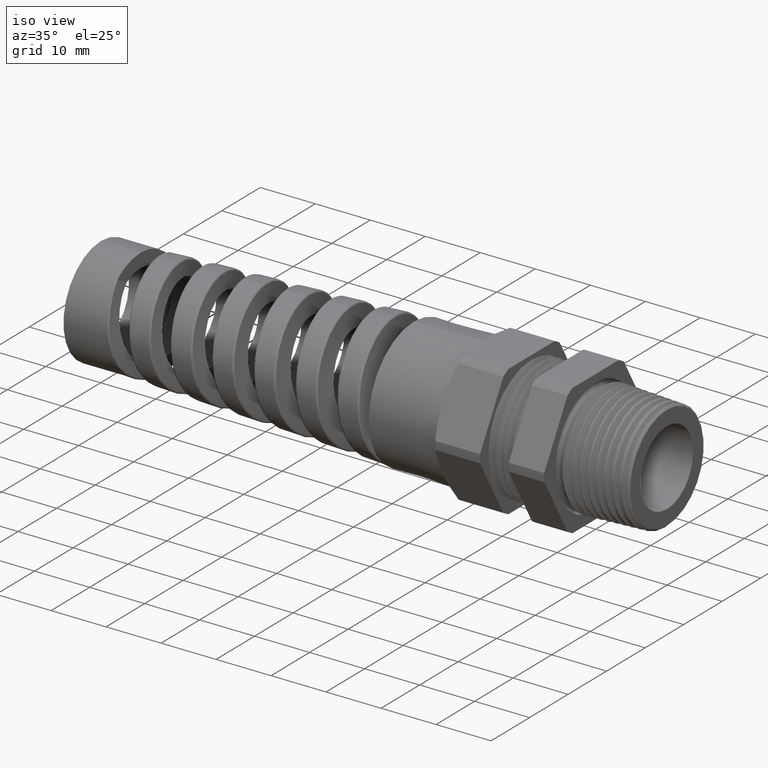
[diagram: clean part render]
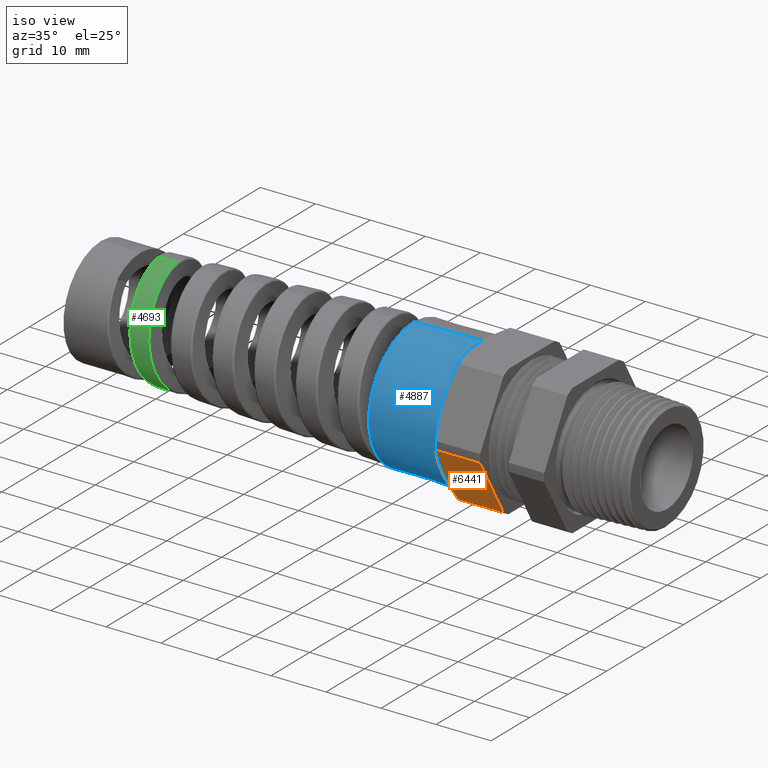
[diagram: same view with three faces highlighted in distinct colors, each labeled with its STEP entity id]
A machine part, iso view with three faces highlighted in distinct colors.
Their STEP definitions:

[orange] entity #6441 — the highlighted planar face has unit normal (0, -0.866, -0.5).
#4 = CARTESIAN_POINT ( 'NONE',  ( -0.7799374448177052200, -0.2885024497772522600, -0.4402990988777105700 ) ) ;
#2244 = CARTESIAN_POINT ( 'NONE',  ( -0.4591666666666665600, -0.5255614297801198800, -0.02970090112228941000 ) ) ;
#4510 = ORIENTED_EDGE ( 'NONE', *, *, #4543, .T. ) ;
#4512 = EDGE_CURVE ( 'NONE', #4886, #6065, #6918, .T. ) ;
#4513 = EDGE_CURVE ( 'NONE', #4897, #6126, #6917, .T. ) ;
#4520 = ORIENTED_EDGE ( 'NONE', *, *, #4512, .T. ) ;
#4535 = ORIENTED_EDGE ( 'NONE', *, *, #4513, .T. ) ;
#4536 = ORIENTED_EDGE ( 'NONE', *, *, #4896, .T. ) ;
#4541 = ORIENTED_EDGE ( 'NONE', *, *, #4847, .F. ) ;
#4542 = EDGE_LOOP ( 'NONE', ( #4541, #4510, #4520, #4536, #4535 ) ) ;
#4543 = EDGE_CURVE ( 'NONE', #5025, #4886, #6960, .T. ) ;
#4847 = EDGE_CURVE ( 'NONE', #5025, #6126, #11093, .T. ) ;
#4886 = VERTEX_POINT ( 'NONE', #11104 ) ;
#4896 = EDGE_CURVE ( 'NONE', #6065, #4897, #11140, .T. ) ;
#4897 = VERTEX_POINT ( 'NONE', #11136 ) ;
#5025 = VERTEX_POINT ( 'NONE', #11383 ) ;
#6065 = VERTEX_POINT ( 'NONE', #4 ) ;
#6126 = VERTEX_POINT ( 'NONE', #2244 ) ;
#6441 = ADVANCED_FACE ( 'NONE', ( #7690 ), #7689, .T. ) ;
#6917 = LINE ( 'NONE', #6971, #6970 ) ;
#6918 = B_SPLINE_CURVE_WITH_KNOTS ( 'NONE', 3,
 ( #6969, #6968, #6967, #6966, #6965, #6964, #6963, #6962 ),
 .UNSPECIFIED., .F., .F.,
 ( 4, 2, 2, 4 ),
 ( 0.006075914357643912700, 0.007584561484949386300, 0.009093208612254859900, 0.01211050286686580900 ),
 .UNSPECIFIED. ) ;
#6954 = CARTESIAN_POINT ( 'NONE',  ( -0.8125000000000001100, -0.4070319397786860100, -0.2350000000000000100 ) ) ;
#6955 = CARTESIAN_POINT ( 'NONE',  ( -0.8124999999999998900, -0.4270861441162215900, -0.2002650991820203200 ) ) ;
#6956 = CARTESIAN_POINT ( 'NONE',  ( -0.8094967120180420700, -0.4469747253204129400, -0.1658170660459015700 ) ) ;
#6957 = CARTESIAN_POINT ( 'NONE',  ( -0.7982716181294380300, -0.4864641007116025700, -0.09741946150920130500 ) ) ;
#6958 = CARTESIAN_POINT ( 'NONE',  ( -0.7900750716247750800, -0.5060662878856625500, -0.06346747738425380400 ) ) ;
#6959 = CARTESIAN_POINT ( 'NONE',  ( -0.7799374448177052200, -0.5255614297801198800, -0.02970090112228942300 ) ) ;
#6960 = B_SPLINE_CURVE_WITH_KNOTS ( 'NONE', 3,
 ( #6959, #6958, #6957, #6956, #6955, #6954 ),
 .UNSPECIFIED., .F., .F.,
 ( 4, 2, 4 ),
 ( 2.361309699382153300E-007, 0.003038075244306925700, 0.006075914357643912700 ),
 .UNSPECIFIED. ) ;
#6961 = DIRECTION ( 'NONE',  ( 0.0000000000000000000, -0.5000000000000001100, 0.8660254037844386000 ) ) ;
#6962 = CARTESIAN_POINT ( 'NONE',  ( -0.7799374448177052200, -0.2885024497772522600, -0.4402990988777105700 ) ) ;
#6963 = CARTESIAN_POINT ( 'NONE',  ( -0.7900271810860453000, -0.3079054958720258100, -0.4066920372199621700 ) ) ;
#6964 = CARTESIAN_POINT ( 'NONE',  ( -0.7982229591427910700, -0.3274636671422469500, -0.3728162908768052900 ) ) ;
#6965 = CARTESIAN_POINT ( 'NONE',  ( -0.8066667942091405600, -0.3571162456125950800, -0.3214565183907389100 ) ) ;
#6966 = CARTESIAN_POINT ( 'NONE',  ( -0.8088394445155459000, -0.3670530184620780500, -0.3042455229521632800 ) ) ;
#6967 = CARTESIAN_POINT ( 'NONE',  ( -0.8117608953203717700, -0.3870431849766051700, -0.2696215388972405500 ) ) ;
#6968 = CARTESIAN_POINT ( 'NONE',  ( -0.8124999999999997800, -0.3970726507460992600, -0.2522499946117037200 ) ) ;
#6969 = CARTESIAN_POINT ( 'NONE',  ( -0.8125000000000001100, -0.4070319397786860100, -0.2350000000000000100 ) ) ;
#6970 = VECTOR ( 'NONE', #6961, 39.37007874015748100 ) ;
#6971 = CARTESIAN_POINT ( 'NONE',  ( -0.4591666666666666700, -0.2970569397786861400, -0.4254822875623873200 ) ) ;
#7689 = PLANE ( 'NONE',  #7759 ) ;
#7690 = FACE_OUTER_BOUND ( 'NONE', #4542, .T. ) ;
#7756 = DIRECTION ( 'NONE',  ( 0.0000000000000000000, 0.5000000000000001100, -0.8660254037844386000 ) ) ;
#7757 = DIRECTION ( 'NONE',  ( 0.0000000000000000000, -0.8660254037844386000, -0.5000000000000001100 ) ) ;
#7758 = CARTESIAN_POINT ( 'NONE',  ( -2.316272878851058700, -0.5255614297801198800, -0.02970090112228941000 ) ) ;
#7759 = AXIS2_PLACEMENT_3D ( 'NONE', #7758, #7757, #7756 ) ;
#11090 = DIRECTION ( 'NONE',  ( 1.000000000000000000, 0.0000000000000000000, 0.0000000000000000000 ) ) ;
#11091 = VECTOR ( 'NONE', #11090, 39.37007874015748100 ) ;
#11092 = CARTESIAN_POINT ( 'NONE',  ( -2.316272878851058700, -0.5255614297801198800, -0.02970090112228941000 ) ) ;
#11093 = LINE ( 'NONE', #11092, #11091 ) ;
#11104 = CARTESIAN_POINT ( 'NONE',  ( -0.8125000000000001100, -0.4070319397786860100, -0.2350000000000000100 ) ) ;
#11136 = CARTESIAN_POINT ( 'NONE',  ( -0.4591666666666666700, -0.2885024497772523100, -0.4402990988777106800 ) ) ;
#11137 = DIRECTION ( 'NONE',  ( 1.000000000000000000, 0.0000000000000000000, 0.0000000000000000000 ) ) ;
#11138 = VECTOR ( 'NONE', #11137, 39.37007874015748100 ) ;
#11139 = CARTESIAN_POINT ( 'NONE',  ( -2.316272878851058700, -0.2885024497772522600, -0.4402990988777105700 ) ) ;
#11140 = LINE ( 'NONE', #11139, #11138 ) ;
#11383 = CARTESIAN_POINT ( 'NONE',  ( -0.7799374448177052200, -0.5255614297801198800, -0.02970090112228942300 ) ) ;

[blue] entity #4887 — the highlighted conical surface has half-angle 1 deg.
#4111 = VERTEX_POINT ( 'NONE', #6801 ) ;
#4118 = EDGE_CURVE ( 'NONE', #4840, #4111, #6852, .T. ) ;
#4710 = EDGE_CURVE ( 'NONE', #4818, #4712, #10891, .T. ) ;
#4712 = VERTEX_POINT ( 'NONE', #10959 ) ;
#4716 = VERTEX_POINT ( 'NONE', #10951 ) ;
#4725 = ORIENTED_EDGE ( 'NONE', *, *, #4892, .T. ) ;
#4728 = EDGE_LOOP ( 'NONE', ( #4843, #4827, #4725, #4884, #4866, #4816 ) ) ;
#4816 = ORIENTED_EDGE ( 'NONE', *, *, #4710, .F. ) ;
#4818 = VERTEX_POINT ( 'NONE', #11040 ) ;
#4827 = ORIENTED_EDGE ( 'NONE', *, *, #4118, .T. ) ;
#4840 = VERTEX_POINT ( 'NONE', #11034 ) ;
#4843 = ORIENTED_EDGE ( 'NONE', *, *, #4893, .F. ) ;
#4866 = ORIENTED_EDGE ( 'NONE', *, *, #4868, .T. ) ;
#4868 = EDGE_CURVE ( 'NONE', #4716, #4712, #11068, .T. ) ;
#4884 = ORIENTED_EDGE ( 'NONE', *, *, #4889, .T. ) ;
#4886 = VERTEX_POINT ( 'NONE', #11104 ) ;
#4887 = ADVANCED_FACE ( 'NONE', ( #11100 ), #11099, .T. ) ;
#4889 = EDGE_CURVE ( 'NONE', #4886, #4716, #11094, .T. ) ;
#4892 = EDGE_CURVE ( 'NONE', #4111, #4886, #11149, .T. ) ;
#4893 = EDGE_CURVE ( 'NONE', #4840, #4818, #11145, .T. ) ;
#6801 = CARTESIAN_POINT ( 'NONE',  ( -0.8125000000000000000, 0.0000000000000000000, -0.4699999999999999200 ) ) ;
#6849 = DIRECTION ( 'NONE',  ( 0.9998476951563912700, -2.137303368083796300E-018, -0.01745240643728355000 ) ) ;
#6850 = VECTOR ( 'NONE', #6849, 39.37007874015748100 ) ;
#6851 = CARTESIAN_POINT ( 'NONE',  ( -0.8125000000000000000, -5.755839955992557200E-017, -0.4699999999999997500 ) ) ;
#6852 = LINE ( 'NONE', #6851, #6850 ) ;
#10888 = DIRECTION ( 'NONE',  ( 0.9998476951563912700, 0.0000000000000000000, 0.01745240643728355000 ) ) ;
#10889 = VECTOR ( 'NONE', #10888, 39.37007874015748100 ) ;
#10890 = CARTESIAN_POINT ( 'NONE',  ( -0.8125000000000000000, 0.0000000000000000000, 0.4699999999999997500 ) ) ;
#10891 = LINE ( 'NONE', #10890, #10889 ) ;
#10951 = CARTESIAN_POINT ( 'NONE',  ( -0.8125000000000000000, -0.4070319397786860100, 0.2349999999999999600 ) ) ;
#10959 = CARTESIAN_POINT ( 'NONE',  ( -0.8125000000000001100, 0.0000000000000000000, 0.4699999999999997000 ) ) ;
#11034 = CARTESIAN_POINT ( 'NONE',  ( -1.301020000000000100, -5.703626231520601100E-017, -0.4614728516812668400 ) ) ;
#11040 = CARTESIAN_POINT ( 'NONE',  ( -1.301020000000000100, 0.0000000000000000000, 0.4614728516812668400 ) ) ;
#11064 = DIRECTION ( 'NONE',  ( 0.0000000000000000000, 0.0000000000000000000, 1.000000000000000000 ) ) ;
#11065 = DIRECTION ( 'NONE',  ( -1.000000000000000000, 0.0000000000000000000, 0.0000000000000000000 ) ) ;
#11066 = CARTESIAN_POINT ( 'NONE',  ( -0.8125000000000000000, 0.0000000000000000000, 0.0000000000000000000 ) ) ;
#11067 = AXIS2_PLACEMENT_3D ( 'NONE', #11066, #11065, #11064 ) ;
#11068 = CIRCLE ( 'NONE', #11067, 0.4699999999999997000 ) ;
#11094 = CIRCLE ( 'NONE', #11159, 0.4699999999999997000 ) ;
#11095 = DIRECTION ( 'NONE',  ( 0.0000000000000000000, 0.0000000000000000000, 1.000000000000000000 ) ) ;
#11096 = DIRECTION ( 'NONE',  ( 1.000000000000000000, 0.0000000000000000000, 0.0000000000000000000 ) ) ;
#11097 = CARTESIAN_POINT ( 'NONE',  ( -0.8125000000000000000, 0.0000000000000000000, 0.0000000000000000000 ) ) ;
#11098 = AXIS2_PLACEMENT_3D ( 'NONE', #11097, #11096, #11095 ) ;
#11099 = CONICAL_SURFACE ( 'NONE', #11098, 0.4699999999999997500, 0.01745329251994333400 ) ;
#11100 = FACE_OUTER_BOUND ( 'NONE', #4728, .T. ) ;
#11104 = CARTESIAN_POINT ( 'NONE',  ( -0.8125000000000001100, -0.4070319397786860100, -0.2350000000000000100 ) ) ;
#11141 = DIRECTION ( 'NONE',  ( 0.0000000000000000000, 0.0000000000000000000, 1.000000000000000000 ) ) ;
#11142 = DIRECTION ( 'NONE',  ( -1.000000000000000000, 0.0000000000000000000, 0.0000000000000000000 ) ) ;
#11143 = CARTESIAN_POINT ( 'NONE',  ( -1.301020000000000100, 0.0000000000000000000, 0.0000000000000000000 ) ) ;
#11144 = AXIS2_PLACEMENT_3D ( 'NONE', #11143, #11142, #11141 ) ;
#11145 = CIRCLE ( 'NONE', #11144, 0.4614728516812668400 ) ;
#11146 = DIRECTION ( 'NONE',  ( 0.0000000000000000000, 0.0000000000000000000, 1.000000000000000000 ) ) ;
#11147 = DIRECTION ( 'NONE',  ( -1.000000000000000000, 0.0000000000000000000, 0.0000000000000000000 ) ) ;
#11148 = AXIS2_PLACEMENT_3D ( 'NONE', #11154, #11147, #11146 ) ;
#11149 = CIRCLE ( 'NONE', #11148, 0.4699999999999997000 ) ;
#11154 = CARTESIAN_POINT ( 'NONE',  ( -0.8125000000000000000, 0.0000000000000000000, 0.0000000000000000000 ) ) ;
#11156 = DIRECTION ( 'NONE',  ( 0.0000000000000000000, 0.0000000000000000000, 1.000000000000000000 ) ) ;
#11157 = DIRECTION ( 'NONE',  ( -1.000000000000000000, 0.0000000000000000000, 0.0000000000000000000 ) ) ;
#11158 = CARTESIAN_POINT ( 'NONE',  ( -0.8125000000000000000, 0.0000000000000000000, 0.0000000000000000000 ) ) ;
#11159 = AXIS2_PLACEMENT_3D ( 'NONE', #11158, #11157, #11156 ) ;

[green] entity #4693 — the highlighted conical surface has half-angle 2.001 deg.
#4494 = EDGE_CURVE ( 'NONE', #6696, #6697, #6928, .T. ) ;
#4588 = VERTEX_POINT ( 'NONE', #7004 ) ;
#4603 = ORIENTED_EDGE ( 'NONE', *, *, #4494, .F. ) ;
#4633 = EDGE_LOOP ( 'NONE', ( #4603, #4638, #4639, #4640 ) ) ;
#4635 = EDGE_CURVE ( 'NONE', #6702, #6697, #7205, .T. ) ;
#4638 = ORIENTED_EDGE ( 'NONE', *, *, #4642, .T. ) ;
#4639 = ORIENTED_EDGE ( 'NONE', *, *, #6704, .T. ) ;
#4640 = ORIENTED_EDGE ( 'NONE', *, *, #4635, .T. ) ;
#4642 = EDGE_CURVE ( 'NONE', #6696, #4588, #10150, .T. ) ;
#4693 = ADVANCED_FACE ( 'NONE', ( #10812 ), #10810, .T. ) ;
#6696 = VERTEX_POINT ( 'NONE', #8143 ) ;
#6697 = VERTEX_POINT ( 'NONE', #8140 ) ;
#6702 = VERTEX_POINT ( 'NONE', #8180 ) ;
#6704 = EDGE_CURVE ( 'NONE', #4588, #6702, #8222, .T. ) ;
#6925 = DIRECTION ( 'NONE',  ( 0.9993904554178625300, 4.275258673359080400E-018, 0.03491013634572581700 ) ) ;
#6926 = VECTOR ( 'NONE', #6925, 39.37007874015748900 ) ;
#6927 = CARTESIAN_POINT ( 'NONE',  ( -0.8125000000000001100, 5.755839955992556000E-017, 0.4699999999999997000 ) ) ;
#6928 = LINE ( 'NONE', #6927, #6926 ) ;
#7004 = CARTESIAN_POINT ( 'NONE',  ( -2.979516246985449700, -1.147770696696962700E-012, -0.3943030266743597400 ) ) ;
#7195 = CARTESIAN_POINT ( 'NONE',  ( -2.871450740991608400, -0.2307533771835994800, -0.3246346770678434900 ) ) ;
#7196 = CARTESIAN_POINT ( 'NONE',  ( -2.866687601030621900, -0.1983592823571956600, -0.3463050721768615200 ) ) ;
#7197 = CARTESIAN_POINT ( 'NONE',  ( -2.863541519721454400, -0.1755915817079613500, -0.3585042816059975100 ) ) ;
#7198 = CARTESIAN_POINT ( 'NONE',  ( -2.858782365508040000, -0.1397063759500415400, -0.3734549240930144500 ) ) ;
#7199 = CARTESIAN_POINT ( 'NONE',  ( -2.857183997188601500, -0.1274102078887896800, -0.3778895900807006700 ) ) ;
#7200 = CARTESIAN_POINT ( 'NONE',  ( -2.853987162184384600, -0.1024092070659099500, -0.3855324735717381400 ) ) ;
#7201 = CARTESIAN_POINT ( 'NONE',  ( -2.852403677692134200, -0.08981659088399500400, -0.3887113240054867500 ) ) ;
#7202 = CARTESIAN_POINT ( 'NONE',  ( -2.847670664471792200, -0.05177414479171083700, -0.3963796526775388900 ) ) ;
#7203 = CARTESIAN_POINT ( 'NONE',  ( -2.844539278800280800, -0.02606202645646304000, -0.3990179650024269200 ) ) ;
#7204 = CARTESIAN_POINT ( 'NONE',  ( -2.841366329396506800, 1.171434713068053200E-012, -0.3991288006579268300 ) ) ;
#7205 = B_SPLINE_CURVE_WITH_KNOTS ( 'NONE', 3,
 ( #7204, #7203, #7202, #7201, #7200, #7199, #7198, #7197, #7196, #7195, #7276, #7275, #7274, #7273, #7272, #7271, #7270, #7269, #7268, #7267, #7266, #7265, #7264, #7263, #7262, #7261, #7260, #7259, #7258, #7257, #7256, #7255, #7254, #7253, #7252, #7251, #7250, #7249, #7248, #7247, #7246, #7245, #7244, #7243, #7242, #7241 ),
 .UNSPECIFIED., .F., .F.,
 ( 4, 2, 2, 2, 2, 2, 2, 2, 2, 2, 2, 2, 2, 2, 2, 2, 2, 2, 2, 2, 2, 2, 4 ),
 ( 0.3477737557203196600, 0.3497824453469187100, 0.3507867901602182400, 0.3517911349735177700, 0.3537998246001168900, 0.3548041694134164100, 0.3558085142267159400, 0.3578172038533150000, 0.3598258934799140600, 0.3608302382932135900, 0.3618345831065131700, 0.3638432727331122300, 0.3658519623597113500, 0.3678606519863104100, 0.3688649967996099300, 0.3698693416129095200, 0.3718780312395085800, 0.3738867208661076900, 0.3748910656794072200, 0.3758954104927067500, 0.3779041001193058600, 0.3789084449326053900, 0.3799127897459049200 ),
 .UNSPECIFIED. ) ;
#7241 = CARTESIAN_POINT ( 'NONE',  ( -2.994270955085566800, 5.338882501823364000E-014, 0.3937876236417171000 ) ) ;
#7242 = CARTESIAN_POINT ( 'NONE',  ( -2.992669957305661700, -0.01292759999036598000, 0.3938435487813702900 ) ) ;
#7243 = CARTESIAN_POINT ( 'NONE',  ( -2.991066952379150200, -0.02588917377350893500, 0.3932645466414368400 ) ) ;
#7244 = CARTESIAN_POINT ( 'NONE',  ( -2.987842323521198800, -0.05188044211377385700, 0.3907997233499539400 ) ) ;
#7245 = CARTESIAN_POINT ( 'NONE',  ( -2.986227408253829400, -0.06484805161296569600, 0.3889124841161386600 ) ) ;
#7246 = CARTESIAN_POINT ( 'NONE',  ( -2.981430635252353400, -0.1030197987259399400, 0.3814204933557827600 ) ) ;
#7247 = CARTESIAN_POINT ( 'NONE',  ( -2.978265010324735700, -0.1277538615259373200, 0.3739819883764442000 ) ) ;
#7248 = CARTESIAN_POINT ( 'NONE',  ( -2.973463614879773500, -0.1637692024162893700, 0.3591515836966874300 ) ) ;
#7249 = CARTESIAN_POINT ( 'NONE',  ( -2.971845294712854200, -0.1756557490609883500, 0.3535549442396182500 ) ) ;
#7250 = CARTESIAN_POINT ( 'NONE',  ( -2.968629411268855400, -0.1986518237445027700, 0.3412948210823483800 ) ) ;
#7251 = CARTESIAN_POINT ( 'NONE',  ( -2.967031117831181700, -0.2097706578674949600, 0.3346374395964671900 ) ) ;
#7252 = CARTESIAN_POINT ( 'NONE',  ( -2.962243118305836600, -0.2420160513409104800, 0.3131247198066891000 ) ) ;
#7253 = CARTESIAN_POINT ( 'NONE',  ( -2.959060016354922300, -0.2620422035809034700, 0.2967436889942641200 ) ) ;
#7254 = CARTESIAN_POINT ( 'NONE',  ( -2.952617021426077000, -0.2990377960896983300, 0.2597637162519116900 ) ) ;
#7255 = CARTESIAN_POINT ( 'NONE',  ( -2.949438396180968300, -0.3154977077730468600, 0.2396516508302757600 ) ) ;
#7256 = CARTESIAN_POINT ( 'NONE',  ( -2.944678274935390100, -0.3370110022522723700, 0.2074281152533168400 ) ) ;
#7257 = CARTESIAN_POINT ( 'NONE',  ( -2.943090487263790000, -0.3436631712468349300, 0.1963275312282020100 ) ) ;
#7258 = CARTESIAN_POINT ( 'NONE',  ( -2.939895891649620300, -0.3559088545907374000, 0.1733956758569369100 ) ) ;
#7259 = CARTESIAN_POINT ( 'NONE',  ( -2.938281183116220300, -0.3615230087633918800, 0.1615032779357492600 ) ) ;
#7260 = CARTESIAN_POINT ( 'NONE',  ( -2.933479147199978200, -0.3764214267395920600, 0.1254189111041137900 ) ) ;
#7261 = CARTESIAN_POINT ( 'NONE',  ( -2.930311701623843100, -0.3838830871926022200, 0.1006840904310604400 ) ) ;
#7262 = CARTESIAN_POINT ( 'NONE',  ( -2.923935688455693100, -0.3939425311998368000, 0.04989237361530837100 ) ) ;
#7263 = CARTESIAN_POINT ( 'NONE',  ( -2.920705742540392200, -0.3964999958403991300, 0.02360680088614350300 ) ) ;
#7264 = CARTESIAN_POINT ( 'NONE',  ( -2.914356218084082500, -0.3964233569806160400, -0.02817661251350383300 ) ) ;
#7265 = CARTESIAN_POINT ( 'NONE',  ( -2.911208236292759400, -0.3938725844099948400, -0.05388753489359619800 ) ) ;
#7266 = CARTESIAN_POINT ( 'NONE',  ( -2.906426398075473600, -0.3862246150655720400, -0.09216649478981164800 ) ) ;
#7267 = CARTESIAN_POINT ( 'NONE',  ( -2.904816771690861300, -0.3830145651651175600, -0.1049204028206885100 ) ) ;
#7268 = CARTESIAN_POINT ( 'NONE',  ( -2.901628846415877000, -0.3754344113472253300, -0.1297916121915254900 ) ) ;
#7269 = CARTESIAN_POINT ( 'NONE',  ( -2.900042944410095500, -0.3710564619932018000, -0.1419709303203607900 ) ) ;
#7270 = CARTESIAN_POINT ( 'NONE',  ( -2.895287196966810600, -0.3561950669319883800, -0.1777528256306608600 ) ) ;
#7271 = CARTESIAN_POINT ( 'NONE',  ( -2.892111384402823200, -0.3439673442139763400, -0.2006565638112219100 ) ) ;
#7272 = CARTESIAN_POINT ( 'NONE',  ( -2.885696664082499900, -0.3148709108277886700, -0.2441536927163705000 ) ) ;
#7273 = CARTESIAN_POINT ( 'NONE',  ( -2.882549506470919500, -0.2984246127461014900, -0.2641363171302377700 ) ) ;
#7274 = CARTESIAN_POINT ( 'NONE',  ( -2.877815283110638500, -0.2710232636743236700, -0.2915516982879301500 ) ) ;
#7275 = CARTESIAN_POINT ( 'NONE',  ( -2.876235282319803900, -0.2614308611532275600, -0.3002606966308128400 ) ) ;
#7276 = CARTESIAN_POINT ( 'NONE',  ( -2.873054582293128200, -0.2413087763144639000, -0.3167981830562322500 ) ) ;
#8140 = CARTESIAN_POINT ( 'NONE',  ( -2.994270955085566800, 5.338882501823364000E-014, 0.3937876236417171000 ) ) ;
#8143 = CARTESIAN_POINT ( 'NONE',  ( -3.132414684483847600, 2.625522387098495300E-016, 0.3889620658204903700 ) ) ;
#8180 = CARTESIAN_POINT ( 'NONE',  ( -2.841366329396506800, 1.171434713068053200E-012, -0.3991288006579268300 ) ) ;
#8218 = DIRECTION ( 'NONE',  ( 0.9993904554178625300, 0.0000000000000000000, -0.03491013634572581700 ) ) ;
#8220 = VECTOR ( 'NONE', #8218, 39.37007874015748900 ) ;
#8221 = CARTESIAN_POINT ( 'NONE',  ( -0.8125000000000001100, 0.0000000000000000000, -0.4699999999999997000 ) ) ;
#8222 = LINE ( 'NONE', #8221, #8220 ) ;
#10107 = CARTESIAN_POINT ( 'NONE',  ( -3.001738788202944700, -0.1737390164418712000, -0.3540412007603551700 ) ) ;
#10108 = CARTESIAN_POINT ( 'NONE',  ( -3.004878335074401300, -0.1962433882612254500, -0.3419313068856861800 ) ) ;
#10109 = CARTESIAN_POINT ( 'NONE',  ( -3.009607558964746400, -0.2280543982126207500, -0.3206261265446151400 ) ) ;
#10110 = CARTESIAN_POINT ( 'NONE',  ( -3.011187226651876000, -0.2383315158233720600, -0.3129972872800161300 ) ) ;
#10111 = CARTESIAN_POINT ( 'NONE',  ( -3.014369694970523600, -0.2582144577125914900, -0.2966599021633789000 ) ) ;
#10112 = CARTESIAN_POINT ( 'NONE',  ( -3.015974498433374500, -0.2678258787203919900, -0.2879340640456602400 ) ) ;
#10113 = CARTESIAN_POINT ( 'NONE',  ( -3.020742290469030000, -0.2950161949214004100, -0.2607008417003527400 ) ) ;
#10114 = CARTESIAN_POINT ( 'NONE',  ( -3.023894806284268500, -0.3111924051677963900, -0.2409760570319618200 ) ) ;
#10115 = CARTESIAN_POINT ( 'NONE',  ( -3.028663402284187600, -0.3325409766829199300, -0.2090557544369318100 ) ) ;
#10116 = CARTESIAN_POINT ( 'NONE',  ( -3.030265225299720200, -0.3391911903861997100, -0.1979796864801798800 ) ) ;
#10117 = CARTESIAN_POINT ( 'NONE',  ( -3.033465506606588800, -0.3513658222618087400, -0.1752168059934727000 ) ) ;
#10118 = CARTESIAN_POINT ( 'NONE',  ( -3.035052733654645300, -0.3568469114687715100, -0.1636222348623517500 ) ) ;
#10119 = CARTESIAN_POINT ( 'NONE',  ( -3.039800317365868800, -0.3715249240618481700, -0.1282210114376670400 ) ) ;
#10120 = CARTESIAN_POINT ( 'NONE',  ( -3.042946225952672300, -0.3789729395315418700, -0.1038025040915788700 ) ) ;
#10121 = CARTESIAN_POINT ( 'NONE',  ( -3.047735771007601600, -0.3865491970516322100, -0.06593000469657787900 ) ) ;
#10122 = CARTESIAN_POINT ( 'NONE',  ( -3.049343879595208100, -0.3884613926862073300, -0.05309809440859969400 ) ) ;
#10123 = CARTESIAN_POINT ( 'NONE',  ( -3.052529333052345100, -0.3909907857819528400, -0.02758027845607805000 ) ) ;
#10124 = CARTESIAN_POINT ( 'NONE',  ( -3.055701918240110600, -0.3922577483744445500, -0.002067258162018228900 ) ) ;
#10125 = CARTESIAN_POINT ( 'NONE',  ( -3.058877809364274100, -0.3910387130444969400, 0.02343273756807121700 ) ) ;
#10126 = CARTESIAN_POINT ( 'NONE',  ( -3.062068065850410900, -0.3885608117368890000, 0.04892455143620894800 ) ) ;
#10127 = CARTESIAN_POINT ( 'NONE',  ( -3.063678014212025700, -0.3866797754350916900, 0.06172650632398351400 ) ) ;
#10128 = CARTESIAN_POINT ( 'NONE',  ( -3.068490903445611800, -0.3791612069076826800, 0.09967719621741368000 ) ) ;
#10129 = CARTESIAN_POINT ( 'NONE',  ( -3.071648034911731900, -0.3717443096297528000, 0.1241184626896074400 ) ) ;
#10130 = CARTESIAN_POINT ( 'NONE',  ( -3.076407092390810700, -0.3571198447007620800, 0.1595169973213389200 ) ) ;
#10131 = CARTESIAN_POINT ( 'NONE',  ( -3.077997180952488400, -0.3516576936053377200, 0.1711044767546822100 ) ) ;
#10132 = CARTESIAN_POINT ( 'NONE',  ( -3.081202000453629800, -0.3395260235776076900, 0.1938413111570326500 ) ) ;
#10133 = CARTESIAN_POINT ( 'NONE',  ( -3.082812569940703200, -0.3328654462099839300, 0.2049564357587730600 ) ) ;
#10134 = CARTESIAN_POINT ( 'NONE',  ( -3.087600586775249000, -0.3115102624109848400, 0.2369171635928318000 ) ) ;
#10135 = CARTESIAN_POINT ( 'NONE',  ( -3.090769482522100400, -0.2953302956987916600, 0.2566361317615905600 ) ) ;
#10136 = CARTESIAN_POINT ( 'NONE',  ( -3.095572470093125500, -0.2681489990939358600, 0.2838214466264780700 ) ) ;
#10137 = CARTESIAN_POINT ( 'NONE',  ( -3.097190352296226700, -0.2585442349204141200, 0.2925252215654930400 ) ) ;
#10138 = CARTESIAN_POINT ( 'NONE',  ( -3.100406619046144600, -0.2386160449927146300, 0.3088540869796251900 ) ) ;
#10139 = CARTESIAN_POINT ( 'NONE',  ( -3.102001582224428200, -0.2283180404603963600, 0.3164694125251961100 ) ) ;
#10140 = CARTESIAN_POINT ( 'NONE',  ( -3.106775970963751000, -0.1964515132655048900, 0.3377093645609114400 ) ) ;
#10141 = CARTESIAN_POINT ( 'NONE',  ( -3.109942597194019300, -0.1739195206491017400, 0.3497434815957544700 ) ) ;
#10142 = CARTESIAN_POINT ( 'NONE',  ( -3.114769539811992800, -0.1381372890496792000, 0.3644940087564329500 ) ) ;
#10143 = CARTESIAN_POINT ( 'NONE',  ( -3.116381138179262300, -0.1259520607857472800, 0.3688190345101446400 ) ) ;
#10144 = CARTESIAN_POINT ( 'NONE',  ( -3.119579467382051200, -0.1014296969609988100, 0.3761866482772264800 ) ) ;
#10145 = CARTESIAN_POINT ( 'NONE',  ( -3.122767017401033600, -0.07665094369555577900, 0.3823160356226627000 ) ) ;
#10146 = CARTESIAN_POINT ( 'NONE',  ( -3.125963397999692800, -0.05136879484875598500, 0.3859955949315015400 ) ) ;
#10147 = CARTESIAN_POINT ( 'NONE',  ( -3.129177913334609200, -0.02583222102678263800, 0.3884284483706884600 ) ) ;
#10148 = CARTESIAN_POINT ( 'NONE',  ( -3.130803248510525700, -0.01286471192690688700, 0.3890183555811511700 ) ) ;
#10149 = CARTESIAN_POINT ( 'NONE',  ( -3.132414684483847600, 2.625522387098495300E-016, 0.3889620658204903700 ) ) ;
#10150 = B_SPLINE_CURVE_WITH_KNOTS ( 'NONE', 3,
 ( #10149, #10148, #10147, #10146, #10145, #10144, #10143, #10142, #10141, #10140, #10139, #10138, #10137, #10136, #10135, #10134, #10133, #10132, #10131, #10130, #10129, #10128, #10127, #10126, #10125, #10124, #10123, #10122, #10121, #10120, #10119, #10118, #10117, #10116, #10115, #10114, #10113, #10112, #10111, #10110, #10109, #10108, #10107, #10189, #10188, #10187, #10186, #10185, #10184, #10183 ),
 .UNSPECIFIED., .F., .F.,
 ( 4, 2, 1, 2, 2, 2, 2, 2, 2, 2, 2, 2, 2, 1, 2, 2, 2, 2, 2, 2, 2, 2, 2, 2, 2, 4 ),
 ( 0.02540904674559345600, 0.02639734373127397600, 0.02738564071695449900, 0.02837393770263501800, 0.02936223468831553700, 0.03133882865967657600, 0.03232712564535709900, 0.03331542263103761500, 0.03529201660239865400, 0.03628031358807917700, 0.03726861057375969300, 0.03924520454512073200, 0.04023350153080124800, 0.04122179851648176400, 0.04221009550216228000, 0.04319839248784279600, 0.04517498645920383500, 0.04616328344488435100, 0.04715158043056487400, 0.04912817440192589900, 0.05011647138760641500, 0.05110476837328693100, 0.05308136234464794900, 0.05505795631600897400, 0.05604625330168948300, 0.05703455028736999200 ),
 .UNSPECIFIED. ) ;
#10183 = CARTESIAN_POINT ( 'NONE',  ( -2.979516246985449700, -1.147770696696962700E-012, -0.3943030266743597400 ) ) ;
#10184 = CARTESIAN_POINT ( 'NONE',  ( -2.981102769264917900, -0.01286317858516527200, -0.3942476071845807400 ) ) ;
#10185 = CARTESIAN_POINT ( 'NONE',  ( -2.982703820784122800, -0.02582949840905835600, -0.3935537606623927800 ) ) ;
#10186 = CARTESIAN_POINT ( 'NONE',  ( -2.985874953642747400, -0.05135812216716335900, -0.3909306205932394600 ) ) ;
#10187 = CARTESIAN_POINT ( 'NONE',  ( -2.987453586861657900, -0.06399007503207777800, -0.3890041775954397000 ) ) ;
#10188 = CARTESIAN_POINT ( 'NONE',  ( -2.992189167965423600, -0.1014933268414815900, -0.3814128777950213100 ) ) ;
#10189 = CARTESIAN_POINT ( 'NONE',  ( -2.995355392905259000, -0.1260591974777277000, -0.3739184994028703100 ) ) ;
#10810 = CONICAL_SURFACE ( 'NONE', #10838, 0.4699999999999997000, 0.03491723117042447300 ) ;
#10812 = FACE_OUTER_BOUND ( 'NONE', #4633, .T. ) ;
#10835 = DIRECTION ( 'NONE',  ( 0.0000000000000000000, 0.0000000000000000000, -1.000000000000000000 ) ) ;
#10836 = DIRECTION ( 'NONE',  ( 1.000000000000000000, 0.0000000000000000000, 0.0000000000000000000 ) ) ;
#10837 = CARTESIAN_POINT ( 'NONE',  ( -0.8125000000000001100, 0.0000000000000000000, 0.0000000000000000000 ) ) ;
#10838 = AXIS2_PLACEMENT_3D ( 'NONE', #10837, #10836, #10835 ) ;